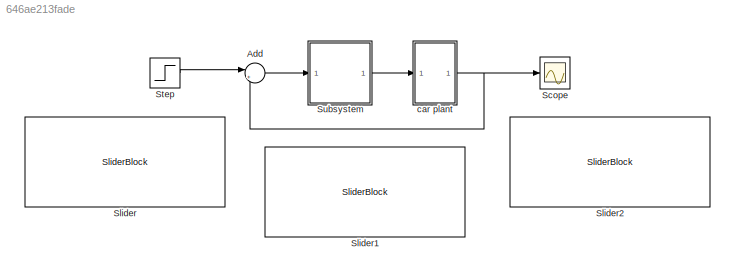
MODEL slx_646ae213fade
KIND model
CONFIG AbsTol = auto
CONFIG EnableMultiTasking = off
CONFIG FixedStep = auto
CONFIG MaxStep = auto
CONFIG MinStep = auto
CONFIG RelTol = 1e-3
CONFIG SampleTimeConstraint = Unconstrained
CONFIG SolverName = VariableStepAuto
CONFIG StartTime = 0.0
CONFIG StopTime = 100
BLOCK [Sum] Add
  Inputs = |+-
  Ports = [2, 1]
BLOCK [Scope] Scope
  Floating = off
  NumInputPorts = 1
  Ports = [1]
  ScopeSpecificationString = Simulink.scopes.TimeScopeBlockCfg('CurrentConfiguration', extmgr.ConfigurationSet(extmgr.Configuration('Core','General UI',true),extmgr.Configuration('Core','Source UI',true),extmgr.Configuration('Sources','WiredSimulink',true),extmgr.Configuration('Visuals','Time Domain',true,'SerializedDisplays',{struct('MinYLimReal','-78.42609','MaxYLimReal','705.83479','YLabelReal','','MinYLimMag','0.00000','M...<+1370ch>
BLOCK [SliderBlock] Slider
  ScaleMax = 600
  ScaleMin = 200
BLOCK [SliderBlock] Slider1
BLOCK [SliderBlock] Slider2
  ScaleMax = 1500
  ScaleMin = 500
BLOCK [Step] Step
  After = u
  SampleTime = 0
  Time = 0
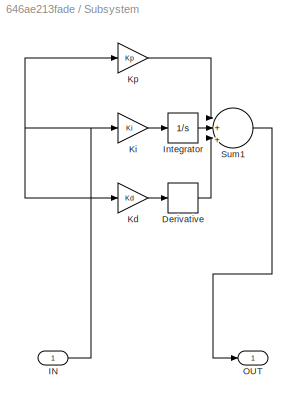
BLOCK [SubSystem] Subsystem
  Ports = [1, 1]
  RequestExecContextInheritance = off
  TreatAsAtomicUnit = on
BLOCK [Derivative] Subsystem/Derivative
BLOCK [Inport] Subsystem/IN
  IconDisplay = Signal name
BLOCK [Integrator] Subsystem/Integrator
  Ports = [1, 1]
BLOCK [Gain] Subsystem/Kd
  Gain = Kd
BLOCK [Gain] Subsystem/Ki
  Gain = Ki
BLOCK [Gain] Subsystem/Kp
  Gain = Kp
BLOCK [Outport] Subsystem/OUT
BLOCK [Sum] Subsystem/Sum1
  Inputs = |+|+|+|
  Ports = [3, 1]
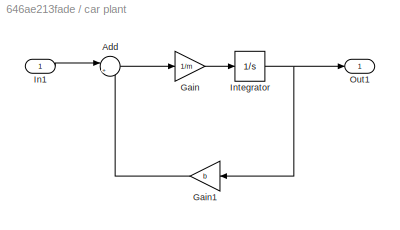
BLOCK [SubSystem] car plant
  Ports = [1, 1]
  RequestExecContextInheritance = off
BLOCK [Sum] car plant/Add
  Inputs = |+-
  Ports = [2, 1]
BLOCK [Gain] car plant/Gain
  Gain = 1/m
BLOCK [Gain] car plant/Gain1
  Gain = b
  NameLocation = top
BLOCK [Inport] car plant/In1
BLOCK [Integrator] car plant/Integrator
  Ports = [1, 1]
BLOCK [Outport] car plant/Out1
LINE Add:1 -> Subsystem:1
LINE Step:1 -> Add:1
LINE Subsystem/Derivative:1 -> Subsystem/Sum1:3
NET Subsystem/IN:1 -> Subsystem/Kd:1, Subsystem/Ki:1, Subsystem/Kp:1
LINE Subsystem/Integrator:1 -> Subsystem/Sum1:2
LINE Subsystem/Kd:1 -> Subsystem/Derivative:1
LINE Subsystem/Ki:1 -> Subsystem/Integrator:1
LINE Subsystem/Kp:1 -> Subsystem/Sum1:1
LINE Subsystem/Sum1:1 -> Subsystem/OUT:1
LINE Subsystem:1 -> car plant:1
LINE car plant/Add:1 -> car plant/Gain:1
LINE car plant/Gain1:1 -> car plant/Add:2
LINE car plant/Gain:1 -> car plant/Integrator:1
LINE car plant/In1:1 -> car plant/Add:1
NET car plant/Integrator:1 -> car plant/Gain1:1, car plant/Out1:1
NET car plant:1 -> Add:2, Scope:1
note: NET lines group one-source signal fan-out (src -> all destinations, sorted); 1:1 wires keep LINE
